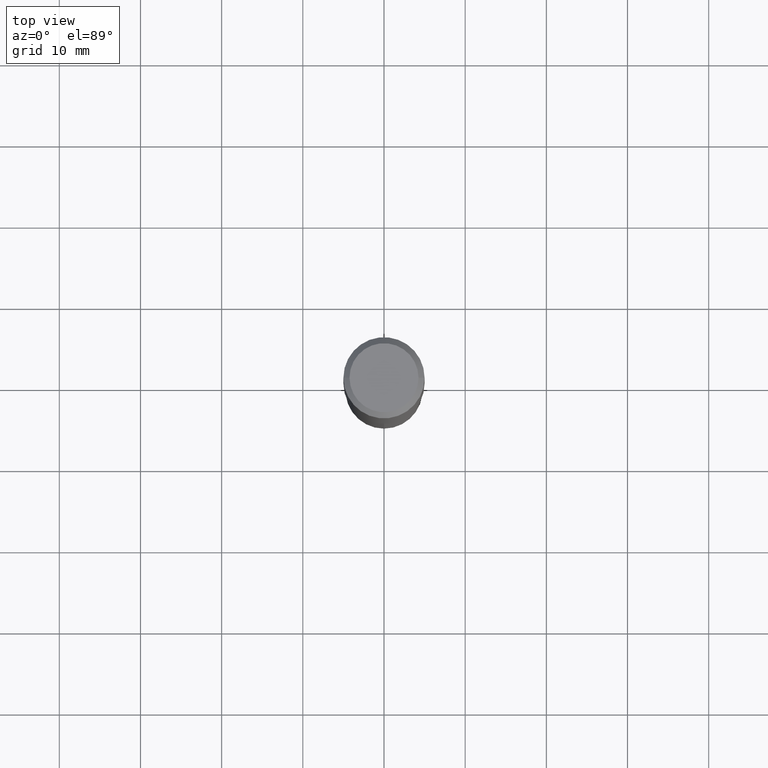
[diagram: clean part render]
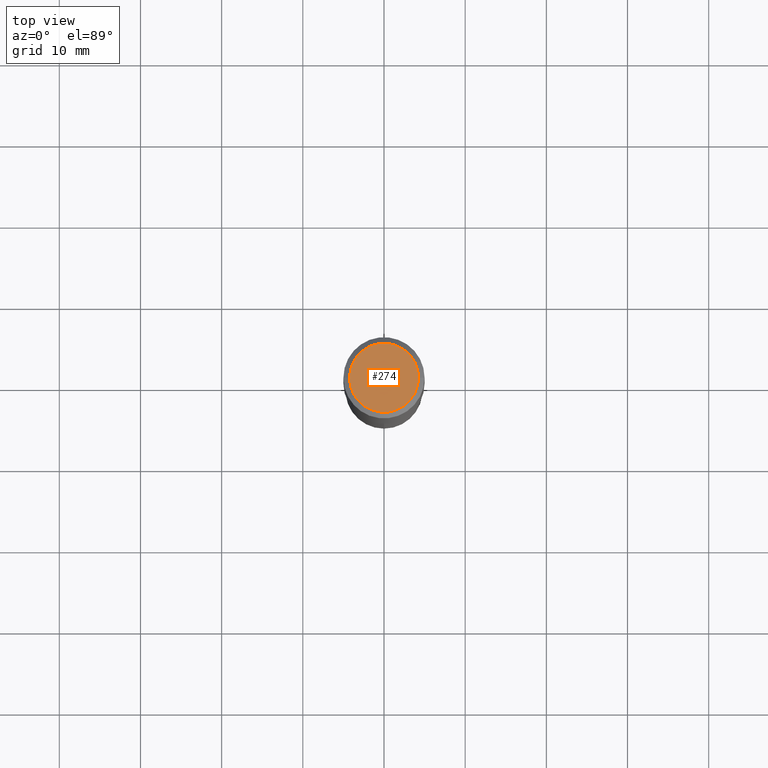
[diagram: same view with one face highlighted and labeled with its STEP entity id]
A machine part, top view. The second image highlights one B-rep face of the part: STEP entity #274.
In plain terms, the highlighted planar face has unit normal (0, -0, -1).
Its self-contained STEP definition (entity closure, byte-faithful):
#75 = EDGE_CURVE ( 'NONE', #168, #445, #379, .T. ) ;
#95 = DIRECTION ( 'NONE',  ( -1.000000000000000000, 6.982962677686265922E-15, -4.876176775795935793E-29 ) ) ;
#114 = CARTESIAN_POINT ( 'NONE',  ( -0.1673224999999999851, 1.219954130253505460E-15, 4.096137381439757534E-18 ) ) ;
#118 = ORIENTED_EDGE ( 'NONE', *, *, #392, .T. ) ;
#168 = VERTEX_POINT ( 'NONE', #114 ) ;
#171 = FACE_OUTER_BOUND ( 'NONE', #488, .T. ) ;
#209 = DIRECTION ( 'NONE',  ( -2.445468806185136597E-29, 3.491481338843145583E-15, 1.000000000000000000 ) ) ;
#210 = ORIENTED_EDGE ( 'NONE', *, *, #75, .T. ) ;
#213 = DIRECTION ( 'NONE',  ( -2.445468806185136597E-29, 3.491481338843145583E-15, 1.000000000000000000 ) ) ;
#221 = CIRCLE ( 'NONE', #399, 0.1673224999999999851 ) ;
#242 = AXIS2_PLACEMENT_3D ( 'NONE', #299, #271, #95 ) ;
#252 = CARTESIAN_POINT ( 'NONE',  ( 0.1673224999999999851, -1.300749711163072594E-15, 4.096137381456741925E-18 ) ) ;
#254 = CARTESIAN_POINT ( 'NONE',  ( -1.001697619218021790E-46, 1.430158722866389718E-32, 4.096137381448108366E-18 ) ) ;
#271 = DIRECTION ( 'NONE',  ( 2.438088387897960049E-29, -3.491481338843145188E-15, -1.000000000000000000 ) ) ;
#274 = ADVANCED_FACE ( 'NONE', ( #171 ), #423, .F. ) ;
#276 = AXIS2_PLACEMENT_3D ( 'NONE', #254, #209, #365 ) ;
#299 = CARTESIAN_POINT ( 'NONE',  ( -5.008488096090108951E-47, 7.150793614331948590E-33, 2.048068690724054183E-18 ) ) ;
#304 = DIRECTION ( 'NONE',  ( 1.000000000000000000, -6.982962677686267499E-15, 4.876294436782262290E-29 ) ) ;
#365 = DIRECTION ( 'NONE',  ( 1.000000000000000000, -6.982962677686267499E-15, 4.876294436782262290E-29 ) ) ;
#379 = CIRCLE ( 'NONE', #276, 0.1673224999999999851 ) ;
#389 = CARTESIAN_POINT ( 'NONE',  ( -1.001697619218021790E-46, 1.430158722866389718E-32, 4.096137381448108366E-18 ) ) ;
#392 = EDGE_CURVE ( 'NONE', #445, #168, #221, .T. ) ;
#399 = AXIS2_PLACEMENT_3D ( 'NONE', #389, #213, #304 ) ;
#423 = PLANE ( 'NONE',  #242 ) ;
#445 = VERTEX_POINT ( 'NONE', #252 ) ;
#488 = EDGE_LOOP ( 'NONE', ( #210, #118 ) ) ;